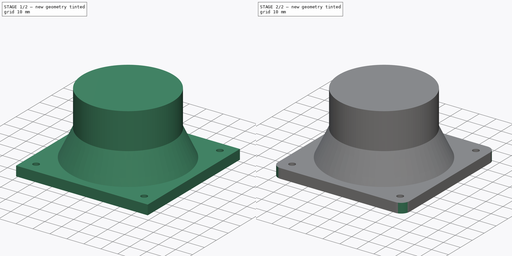
[diagram: build sequence overview — one tinted view per stage of 2, left to right]
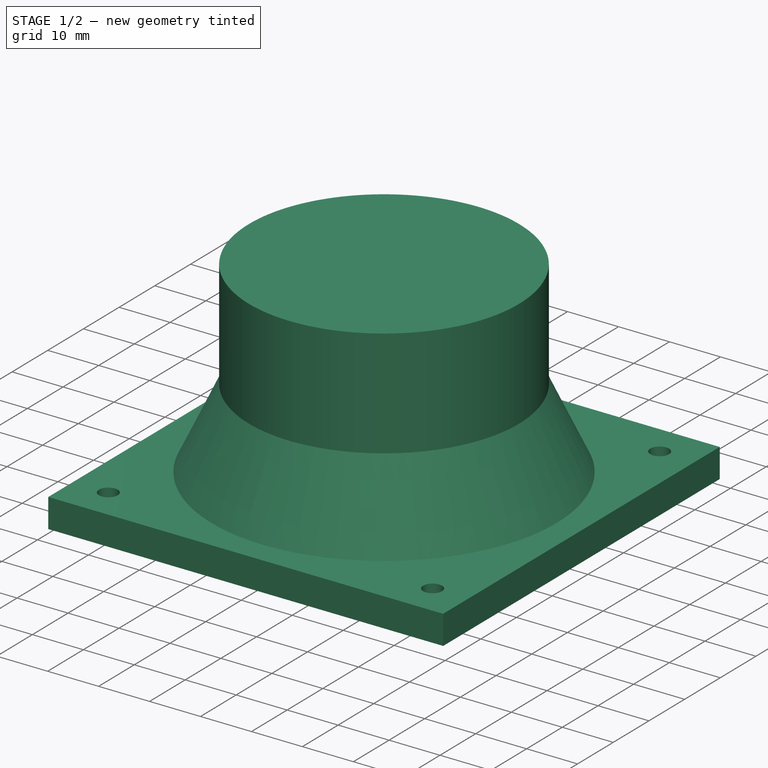
[diagram: stage 1 of 2 — iso view after this stage's code; geometry added in this stage tinted green]
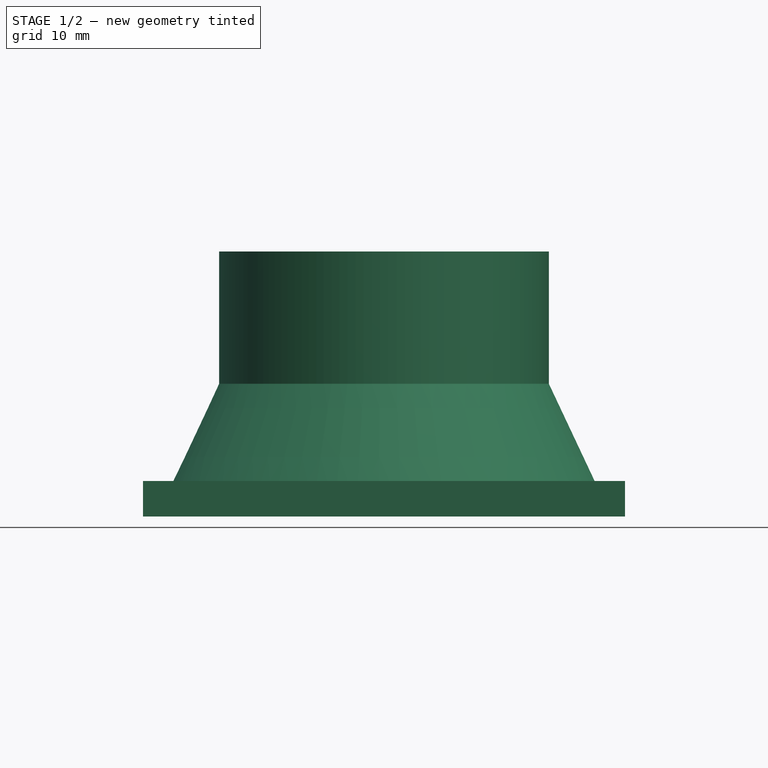
[diagram: stage 1 of 2 — front view after this stage's code; geometry added in this stage tinted green]
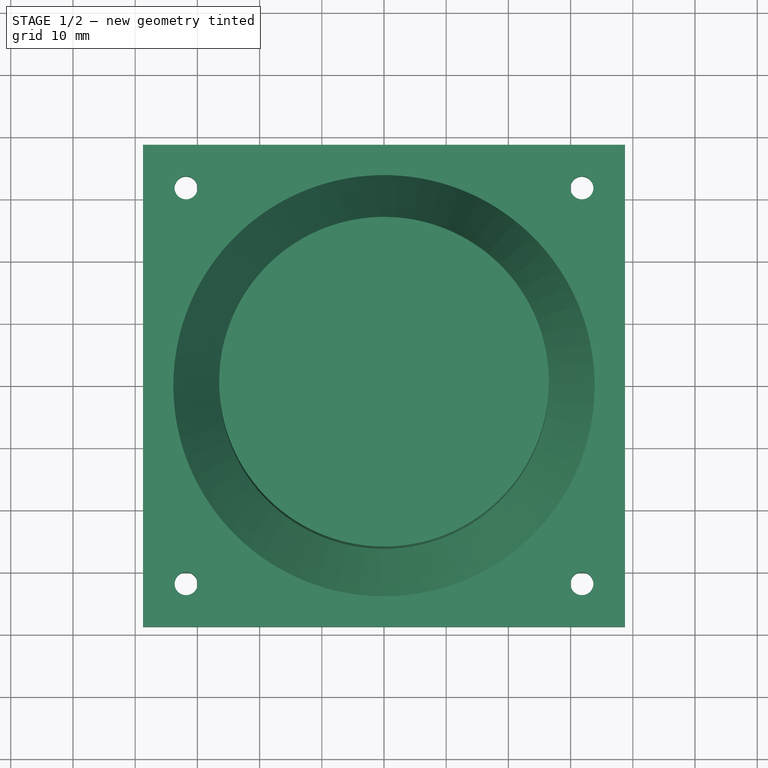
[diagram: stage 1 of 2 — top view after this stage's code; geometry added in this stage tinted green]
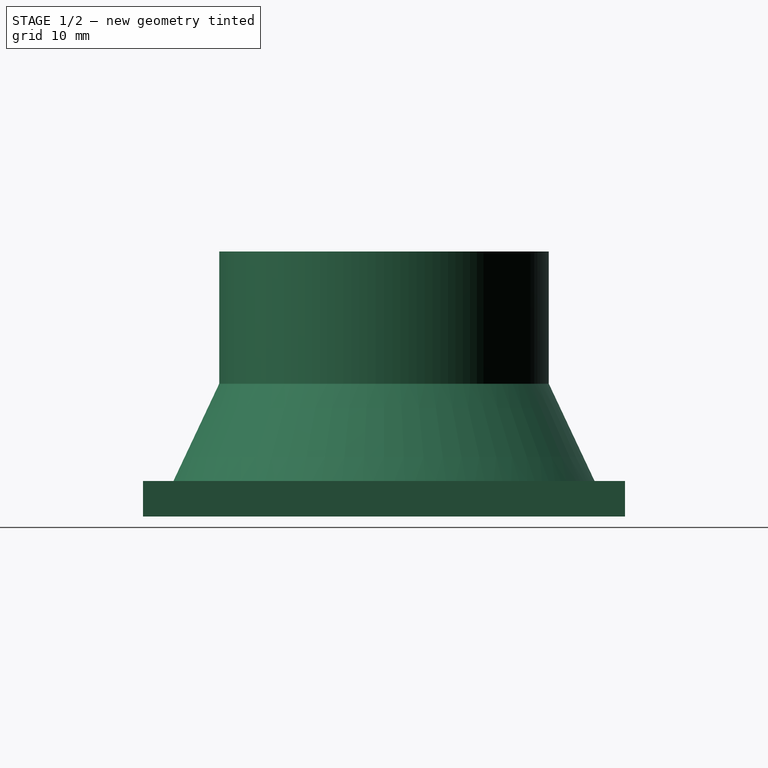
[diagram: stage 1 of 2 — right view after this stage's code; geometry added in this stage tinted green]
FCSTD DOCUMENT  (FreeCAD 0.16R6703 (Git))
Label: sc8n
License: All rights reserved
LicenseURL: http://en.wikipedia.org/wiki/All_rights_reserved
objects: Drawing::FeatureViewPython×6, Drawing::FeatureViewPart×4, Sketcher::SketchObject×3, PartDesign::Revolution×1, PartDesign::Pad×1, PartDesign::Fillet×1, PartDesign::Pocket×1, Drawing::FeaturePage×1
note: 10 computed .brp shape members not serialized (recipe doc carries the construction recipe); baked Part::Feature solids carry a one-line shape summary decoded from their .brp

FEATURE [Sketcher::SketchObject] Sketch001
  Placement = pos=(0,0,0) rot=(1,0,0;1.5708rad)
  expr: Constraints[3] = 53 / 2
  sketch-geometry (11):
    g0: LineSegment StartX=0 StartY=74.5908 StartZ=0 EndX=26.5 EndY=74.5908 EndZ=0
    g1: LineSegment StartX=26.5 StartY=53.3408 StartZ=0 EndX=36.5 EndY=32.0908 EndZ=0
    g2: LineSegment StartX=0 StartY=41.7459 StartZ=0 EndX=0 EndY=74.5908 EndZ=0
    g3: LineSegment StartX=26.5 StartY=53.3408 StartZ=0 EndX=26.5 EndY=74.5908 EndZ=0
    g4: LineSegment StartX=36.5 StartY=32.0908 StartZ=0 EndX=33.5 EndY=32.0908 EndZ=0
    g5: LineSegment StartX=33.5 StartY=32.0908 StartZ=0 EndX=10 EndY=46.7459 EndZ=0
    g6: ArcOfEllipse CenterX=0 CenterY=48.0186 CenterZ=0 NormalX=0 NormalY=0 NormalZ=1 MajorRadius=10.2124 MinorRadius=6.27268 AngleXU=3.14159 StartAngle=1.5708 EndAngle=2.93728
    g7: LineSegment [constr] StartX=-10.2124 StartY=48.0186 StartZ=0 EndX=10.2124 EndY=48.0186 EndZ=0
    g8: LineSegment [constr] StartX=0 StartY=41.7459 StartZ=0 EndX=0 EndY=54.2912 EndZ=0
    g9: GeomPoint [constr] X=-8.05896 Y=48.0186 Z=0
    g10: GeomPoint [constr] X=8.05896 Y=48.0186 Z=0
  constraints (23):
    c: PointOnObject(g0,g-2)
    c: Horizontal(g0)
    c: Vertical(g2)
    c: DistanceX(g0,g0) = 26.5
    c: DistanceX(g2,g1) = 36.5
    c: Coincident(g2,g0)
    c: DistanceY(g1,g0) = 21.25
    c: Coincident(g3,g1)
    c: Coincident(g3,g0)
    c: Vertical(g3)
    c: Coincident(g4,g1)
    c: Coincident(g5,g4)
    c: DistanceY(g1,g0) = 42.5
    c: InternalAlignment(g7-g10 -> g6) x4
    c: PointOnObject(g6,g2)
    c: PointOnObject(g2,g6)
    c: Coincident(g6,g5)
    c: Coincident(g6,g2)
    c: Perpendicular(g2,g7)
    c: Perpendicular(g2,g4)
    c: DistanceY(g2,g5) = 5
    c: DistanceX(g2,g5) = 10
    c: DistanceX(g4,g4) = 3
FEATURE [PartDesign::Revolution] Revolution
  Angle = 360
  Axis = (0,0,1)
  Base = (0,0,0)
  Placement = pos=(0,0,0) rot=(1,0,0;1.5708rad)
  ReferenceAxis = -> Sketch001 [V_Axis]
  Reversed = true
  Sketch = -> Sketch001
FEATURE [Sketcher::SketchObject] Sketch002
  Placement = pos=(0,0,31.9934) rot=(1,0,0;3.14159rad)
  Support = -> Revolution [Face2]
  expr: Constraints[27] = 3.7 / 2
  expr: Constraints[26] = 3.7 / 2
  expr: Constraints[25] = 3.7 / 2
  sketch-geometry (11):
    g0: LineSegment StartX=-38.75 StartY=38.75 StartZ=0 EndX=38.75 EndY=38.75 EndZ=0
    g1: LineSegment StartX=38.75 StartY=38.75 StartZ=0 EndX=38.75 EndY=-38.75 EndZ=0
    g2: LineSegment StartX=38.75 StartY=-38.75 StartZ=0 EndX=-38.75 EndY=-38.75 EndZ=0
    g3: LineSegment StartX=-38.75 StartY=-38.75 StartZ=0 EndX=-38.75 EndY=38.75 EndZ=0
    g4: LineSegment [constr] StartX=-38.75 StartY=38.75 StartZ=0 EndX=38.75 EndY=-38.75 EndZ=0
    g5: LineSegment [constr] StartX=38.75 StartY=38.75 StartZ=0 EndX=-38.75 EndY=-38.75 EndZ=0
    g6: Circle [constr] CenterX=0 CenterY=0 CenterZ=0 NormalX=0 NormalY=0 NormalZ=1 Radius=45
    g7: Circle CenterX=-31.8198 CenterY=31.8198 CenterZ=0 NormalX=0 NormalY=0 NormalZ=1 Radius=1.85
    g8: Circle CenterX=31.8198 CenterY=31.8198 CenterZ=0 NormalX=0 NormalY=0 NormalZ=1 Radius=1.85
    g9: Circle CenterX=-31.8198 CenterY=-31.8198 CenterZ=0 NormalX=0 NormalY=0 NormalZ=1 Radius=1.85
    g10: Circle CenterX=31.8198 CenterY=-31.8198 CenterZ=0 NormalX=0 NormalY=0 NormalZ=1 Radius=1.85
  constraints (30):
    c: Coincident(g0,g1)
    c: Coincident(g1,g2)
    c: Coincident(g2,g3)
    c: Coincident(g3,g0)
    c: Horizontal(g0)
    c: Horizontal(g2)
    c: Vertical(g1)
    c: Vertical(g3)
    c: DistanceX(g0,g0) = 77.5
    c: DistanceY(g1,g1) = 77.5
    c: Coincident(g4,g0)
    c: Coincident(g4,g1)
    c: Coincident(g5,g0)
    c: Coincident(g5,g2)
    c: PointOnObject(g-1,g4)
    c: PointOnObject(g-1,g5)
    c: Coincident(g6,g-1)
    c: Radius(g6) = 45
    c: PointOnObject(g7,g6)
    c: PointOnObject(g8,g6)
    c: PointOnObject(g7,g4)
    c: PointOnObject(g9,g5)
    c: PointOnObject(g8,g5)
    c: PointOnObject(g10,g4)
    c: PointOnObject(g10,g6)
    c: Radius(g10) = 1.85
    c: Radius(g9) = 1.85
    c: Radius(g7) = 1.85
    c: Equal(g7,g8)
    c: PointOnObject(g9,g6)
FEATURE [PartDesign::Pad] Pad
  Length = 5.7
  Length2 = 100
  Placement = pos=(0,0,0) rot=(1,0,0;1.5708rad)
  Reversed = true
  Sketch = -> Sketch002
  Type = 0
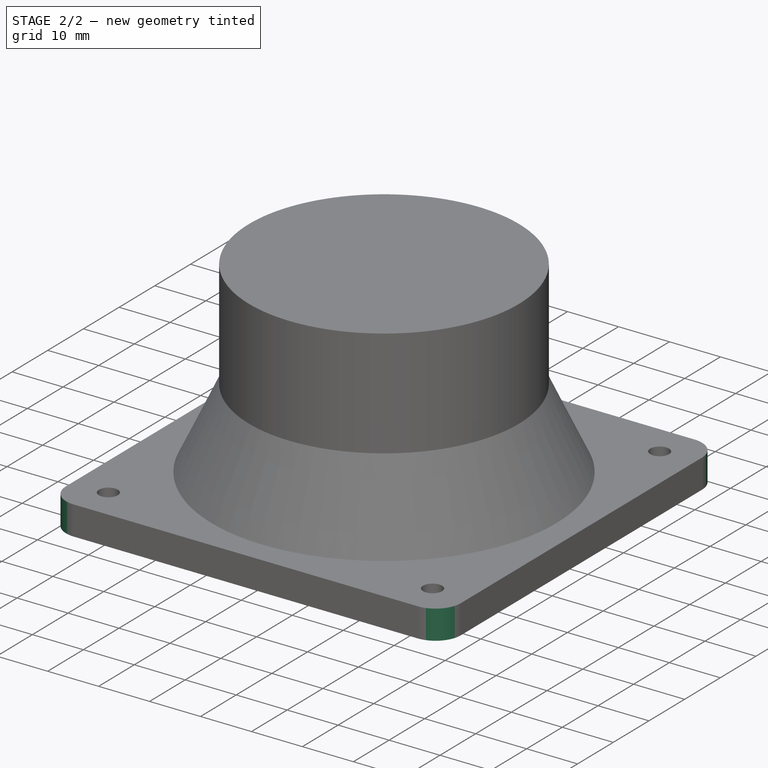
[diagram: stage 2 of 2 — iso view after this stage's code; geometry added in this stage tinted green]
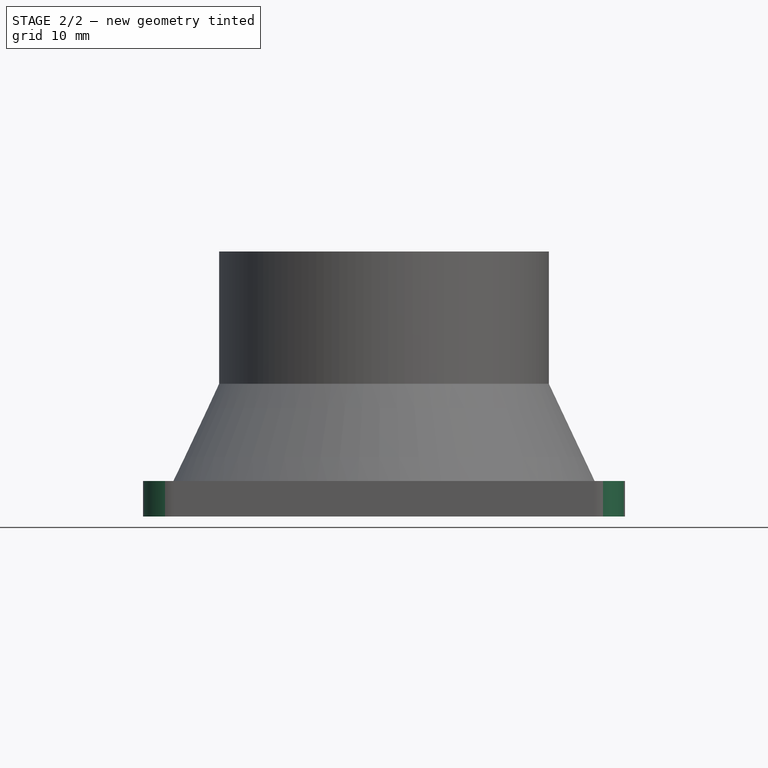
[diagram: stage 2 of 2 — front view after this stage's code; geometry added in this stage tinted green]
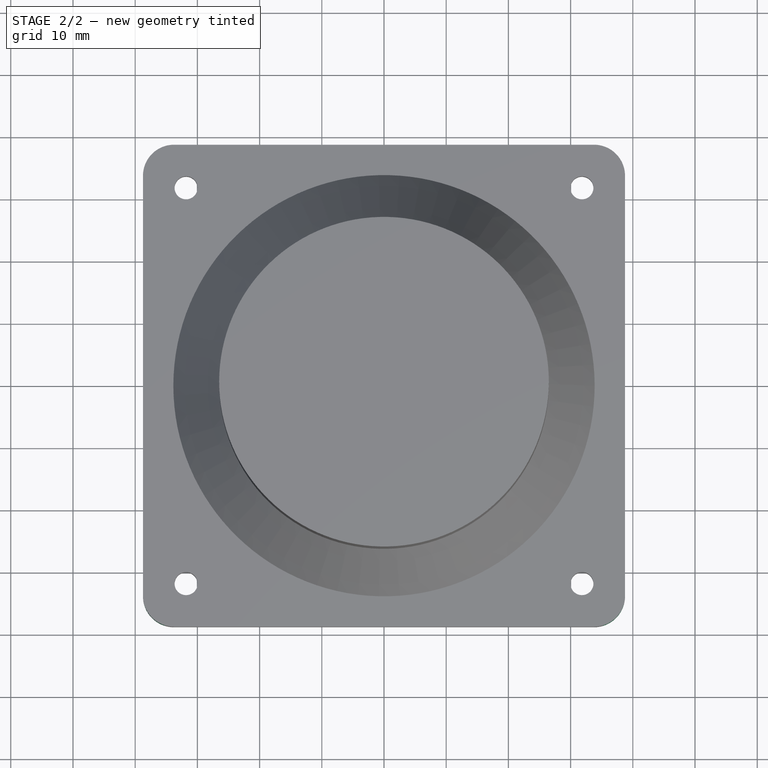
[diagram: stage 2 of 2 — top view after this stage's code; geometry added in this stage tinted green]
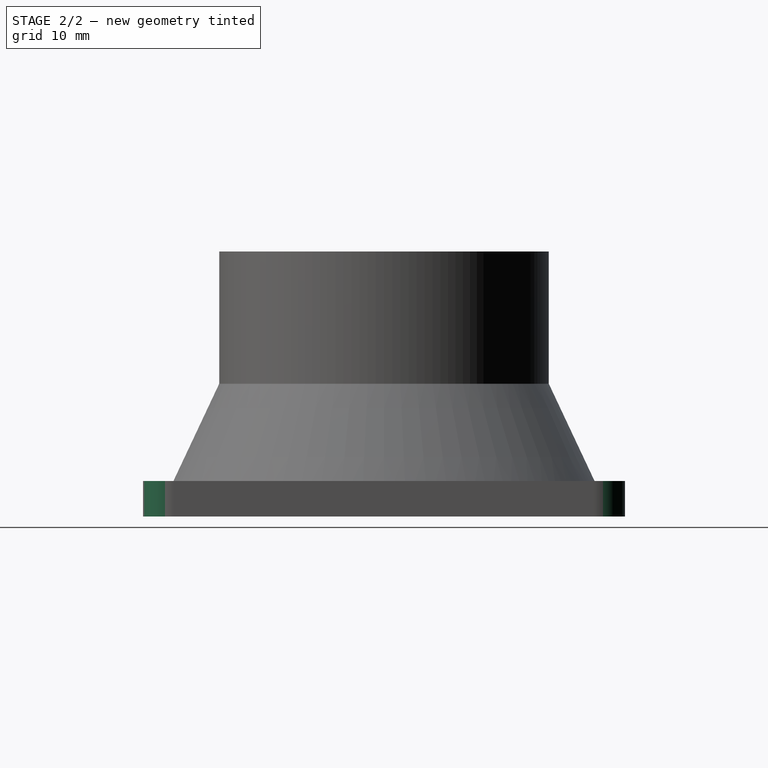
[diagram: stage 2 of 2 — right view after this stage's code; geometry added in this stage tinted green]
FEATURE [PartDesign::Fillet] Fillet
  Base = -> Pad [Edge15,Edge14,Edge17,Edge19]
  Placement = pos=(0,0,0) rot=(1,0,0;1.5708rad)
  Radius = 5
FEATURE [Sketcher::SketchObject] Sketch
  Placement = pos=(0,0,31.9934) rot=(1,0,0;3.14159rad)
  Support = -> Fillet [Face15]
  sketch-geometry (1):
    g0: Circle CenterX=0 CenterY=0 CenterZ=0 NormalX=0 NormalY=0 NormalZ=1 Radius=32.5373
  constraints (1):
    c: Coincident(g0,g-1)
FEATURE [PartDesign::Pocket] Pocket
  Length = 5.7
  Placement = pos=(0,0,0) rot=(1,0,0;1.5708rad)
  Sketch = -> Sketch
  Type = 0
FEATURE [Drawing::FeatureViewPart] Ortho  label="Ortho_0_0"
  Direction = (1,0,0)
  HiddenWidth = 0.15
  LineWidth = 0.35
  Rotation = -90
  ShowHiddenLines = false
  ShowSmoothLines = false
  Source = -> Pocket
  Tolerance = 0.05
  ViewResult = <blob: 3733 chars omitted>
  Visible = true
  X = 130.417
  Y = 116.892
FEATURE [Drawing::FeatureViewPart] Ortho001  label="Ortho_1_0"
  Direction = (0,1,0)
  HiddenWidth = 0.15
  LineWidth = 0.35
  Rotation = -90
  ShowHiddenLines = false
  ShowSmoothLines = false
  Source = -> Pocket
  Tolerance = 0.05
  ViewResult = <blob: 3154 chars omitted>
  Visible = true
  X = 289.583
  Y = 116.892
FEATURE [Drawing::FeatureViewPart] Ortho002  label="Ortho_1_-1"
  Direction = (0.57735,0.57735,-0.57735)
  HiddenWidth = 0.15
  LineWidth = 0.35
  Rotation = 60
  ShowHiddenLines = false
  ShowSmoothLines = false
  Source = -> Pocket
  Tolerance = 0.05
  ViewResult = <blob: 4221 chars omitted>
  Visible = true
  X = 289.583
  Y = 199.462
FEATURE [Drawing::FeatureViewPart] Ortho003  label="Ortho_0_-1"
  Direction = (0,0,-1)
  HiddenWidth = 0.15
  LineWidth = 0.35
  Rotation = 90
  ShowHiddenLines = false
  ShowSmoothLines = false
  Source = -> Pocket
  Tolerance = 0.05
  ViewResult = <g id="Ortho_0_-1"\n   transform="rotate(90,130.417,155.949) translate(130.417,155.949) scale(1,1)"\n  >\n<g   stroke="rgb(0, 0, 0)"\n   stroke-width="0.35"\n   stroke-linecap="butt"\n   stroke-linejoin="miter"\n   fill="none"\n   transform="scale(1,-1)"\n  >\n<path id= "1" d=" M 33.75 -38.75 L -33.75 -38.75 " />\n<path d="M33.75 -38.75 A5 5 0 0 1 38.75 -33.75" /><path d="M-33.75 -38.75 A5 5 0 0 0 -38.75 -33.75" /><path id= "4" d=" M 38.75 33.75 L 38.75 -33.75 " />\n<path id= "5" d=" M -38.75 -33.75 L -38.75 33.75 " />\n<path d="M38.75 33.75 A5 5 0 0 1 33.75 38.75" /><path d="M-38.75 33.75 A5 5 0 0 0 -33.75 38.75" /><path id= "8" d=" M -33.75 38.75 L 33.75 38.75 " />\n<circle cx ="31.8198" cy ="31.8198" r ="1.85" /><circle cx ="31.8198" cy ="-31.8198" r ="1.85" /><circle cx ="-31.8198" cy ="31.8198" r ="1.85" /><circle cx ="-31.8198" cy ="-31.8198" r ="1.85" /><circle cx ="0" cy ="4.3082e-014" r ="32.5373" /><circle cx ="0" cy ="5.02176e-014" r ="24.5161" /><circle cx ="0" cy ="6.2278e-014" r ="10" /></g>\n</g>
  Visible = true
  X = 130.417
  Y = 155.949
FEATURE [Drawing::FeatureViewPython] dim001  # drawing view (typed FeaturePython)
  Rotation = 0
  ViewResult = <g> <line x1="91.667000" y1="120.199000" x2="91.667000" y2="105.301106" style="stroke:rgb(0,0,255);stroke-width:0.50" />\n<line x1="169.167000" y1="120.199000" x2="169.167000" y2="105.301106" style="stroke:rgb(0,0,255);stroke-width:0.50" />\n<line x1="91.667000" y1="106.301106" x2="169.167000" y2="106.301106" style="stroke:rgb(0,0,255);stroke-width:0.50" />\n<polygon points="91.667000,106.301106 94.667000,107.301106 95.667000,106.301106 94.667000,105.301106" style="fill:rgb(0,0,255);stroke:rgb(0,0,255);stroke-width:0" />\n<polygon points="169.167000,106.301106 166.167000,105.301106 165.167000,106.301106 166.167000,107.301106" style="fill:rgb(0,0,255);stroke:rgb(0,0,255);stroke-width:0" />\n<text x="130.417000" y="104.301106" font-family="inherit" font-size="3.6" fill="rgb(0,0,255)" text-anchor="middle" transform="rotate(0.000000 130.417000,104.301106)" >77.5</text> </g> 
  Visible = true
  X = 0
  Y = 0
  arrowL1 = 3
  arrowL2 = 1
  arrowW = 2
  arrow_scheme = 0
  autoPlaceOffset = 2
  autoPlaceText = true
  click1_x = 137.943
  click1_y = 106.301
  click2_x = 137.943
  click2_y = 106.301
  comma_decimal_place = false
  dimension_line_overshoot = 1
  gap_datum_points = 2
  halfDimension_linear = false
  lineColor = rgb(0,0,255)
  strokeWidth = 0.5
  textFormat_linear = %(value)3.3f
  textRenderer_color = rgb(0,0,255)
  textRenderer_family = inherit
  textRenderer_size = 3.6
  unit_custom_scale = 1
  unit_scheme = 0
FEATURE [Drawing::FeatureViewPython] dim002  # drawing view (typed FeaturePython)
  Rotation = 0
  ViewResult = <g> <line x1="94.667000" y1="117.199000" x2="82.547692" y2="117.199000" style="stroke:rgb(0,0,255);stroke-width:0.50" />\n<line x1="94.667000" y1="194.699000" x2="82.547692" y2="194.699000" style="stroke:rgb(0,0,255);stroke-width:0.50" />\n<line x1="83.547692" y1="117.199000" x2="83.547692" y2="194.699000" style="stroke:rgb(0,0,255);stroke-width:0.50" />\n<polygon points="83.547692,117.199000 82.547692,120.199000 83.547692,121.199000 84.547692,120.199000" style="fill:rgb(0,0,255);stroke:rgb(0,0,255);stroke-width:0" />\n<polygon points="83.547692,194.699000 84.547692,191.699000 83.547692,190.699000 82.547692,191.699000" style="fill:rgb(0,0,255);stroke:rgb(0,0,255);stroke-width:0" />\n<text x="81.547692" y="155.949000" font-family="inherit" font-size="3.6" fill="rgb(0,0,255)" text-anchor="middle" transform="rotate(-90.000000 81.547692,155.949000)" >77.5</text> </g> 
  Visible = true
  X = 0
  Y = 0
  arrowL1 = 3
  arrowL2 = 1
  arrowW = 2
  arrow_scheme = 0
  autoPlaceOffset = 2
  autoPlaceText = true
  click1_x = 83.5477
  click1_y = 182.027
  click2_x = 83.5477
  click2_y = 182.027
  comma_decimal_place = false
  dimension_line_overshoot = 1
  gap_datum_points = 2
  halfDimension_linear = false
  lineColor = rgb(0,0,255)
  strokeWidth = 0.5
  textFormat_linear = %(value)3.3f
  textRenderer_color = rgb(0,0,255)
  textRenderer_family = inherit
  textRenderer_size = 3.6
  unit_custom_scale = 1
  unit_scheme = 0
FEATURE [Drawing::FeatureViewPython] dia001  # drawing view (typed FeaturePython)
  Rotation = 0
  ViewResult = <g>  <circle cx ="130.417000" cy ="155.949000" r="0.250000" stroke="none" fill="rgb(0,0,255)" /> \n<line x1="182.027312" y1="154.296589" x2="162.937636" y2="156.990215" style="stroke:rgb(0,0,255);stroke-width:0.50" />\n<polygon points="97.896364,154.907785 100.862827,156.003274 101.894315,155.035787 100.926828,154.004299" style="fill:rgb(0,0,255);stroke:rgb(0,0,255);stroke-width:0" />\n<polygon points="162.937636,156.990215 159.971173,155.894726 158.939685,156.862213 159.907172,157.893701" style="fill:rgb(0,0,255);stroke:rgb(0,0,255);stroke-width:0" />\n<line x1="182.027312" y1="154.296589" x2="181.316268" y2="154.296589" style="stroke:rgb(0,0,255);stroke-width:0.50" />\n<text x="181.671790" y="152.296589" font-family="inherit" font-size="3.6" fill="rgb(0,0,255)" text-anchor="middle" transform="rotate(0.000000 181.671790,152.296589)" >Ø65.075</text> </g>
  Visible = true
  X = 0
  Y = 0
  arrowL1 = 3
  arrowL2 = 1
  arrowW = 2
  arrow_scheme = 0
  autoPlaceOffset = 2
  autoPlaceText = true
  centerPointDia = 0.5
  click1_x = 182.027
  click1_y = 154.297
  click2_x = 181.316
  click2_y = 153.941
  click3_x = 181.316
  click3_y = 153.941
  comma_decimal_place = false
  lineColor = rgb(0,0,255)
  strokeWidth = 0.5
  textFormat_circular = Ø%(value)3.3f
  textRenderer_color = rgb(0,0,255)
  textRenderer_family = inherit
  textRenderer_size = 3.6
  unit_custom_scale = 1
  unit_scheme = 0
FEATURE [Drawing::FeatureViewPython] dia002  # drawing view (typed FeaturePython)
  Rotation = 0
  ViewResult = <g>  <circle cx ="162.236800" cy ="124.129200" r="0.250000" stroke="none" fill="rgb(0,0,255)" /> \n<line x1="177.050003" y1="123.010645" x2="164.081548" y2="124.268498" style="stroke:rgb(0,0,255);stroke-width:0.50" />\n<polygon points="160.392052,123.989902 157.475865,122.766852 156.403407,123.688716 157.325272,124.761174" style="fill:rgb(0,0,255);stroke:rgb(0,0,255);stroke-width:0" />\n<polygon points="164.081548,124.268498 166.997735,125.491548 168.070193,124.569684 167.148328,123.497226" style="fill:rgb(0,0,255);stroke:rgb(0,0,255);stroke-width:0" />\n<line x1="177.050003" y1="123.010645" x2="177.761047" y2="123.010645" style="stroke:rgb(0,0,255);stroke-width:0.50" />\n<text x="177.405525" y="121.010645" font-family="inherit" font-size="3.6" fill="rgb(0,0,255)" text-anchor="middle" transform="rotate(0.000000 177.405525,121.010645)" >Ø3.7</text> </g>
  Visible = true
  X = 0
  Y = 0
  arrowL1 = 3
  arrowL2 = 1
  arrowW = 2
  arrow_scheme = 0
  autoPlaceOffset = 2
  autoPlaceText = true
  centerPointDia = 0.5
  click1_x = 177.05
  click1_y = 123.011
  click2_x = 177.761
  click2_y = 124.433
  click3_x = 177.761
  click3_y = 124.433
  comma_decimal_place = false
  lineColor = rgb(0,0,255)
  strokeWidth = 0.5
  textFormat_circular = Ø%(value)3.3f
  textRenderer_color = rgb(0,0,255)
  textRenderer_family = inherit
  textRenderer_size = 3.6
  unit_custom_scale = 1
  unit_scheme = 0
FEATURE [Drawing::FeatureViewPython] centerLines001  # drawing view (typed FeaturePython)
  Rotation = 0
  ViewResult = <blob: 3079 chars omitted>
  Visible = true
  X = 0
  Y = 0
  centerLine_color = rgb(0,0,255)
  centerLine_len_dash = 6
  centerLine_len_dot = 3
  centerLine_len_gap = 2
  centerLine_width = 0.32
  click1_x = 44.0084
  click1_y = 56.0815
  click2_x = 257.04
  click2_y = 233.284
FEATURE [Drawing::FeatureViewPython] centerLines002  # drawing view (typed FeaturePython)
  Rotation = 0
  ViewResult = <blob: 3230 chars omitted>
  Visible = true
  X = 0
  Y = 0
  centerLine_color = rgb(0,0,255)
  centerLine_len_dash = 6
  centerLine_len_dot = 3
  centerLine_len_gap = 2
  centerLine_width = 0.32
  click1_x = 234.452
  click1_y = 35.0509
  click2_x = 47.903
  click2_y = 251.977
FEATURE [Drawing::FeaturePage] Page
  EditableTexts = AUTHOR NAME | CREATION DATE | SUPERVISOR NAME | CHECK DATE | SCALE | WEIGHT | NUMBER | SHEET | TITLE | SUBTITLE
  Group = -> [Ortho,Ortho001,Ortho002,Ortho003,dim001,dim002,dia001,dia002,centerLines001,centerLines002]
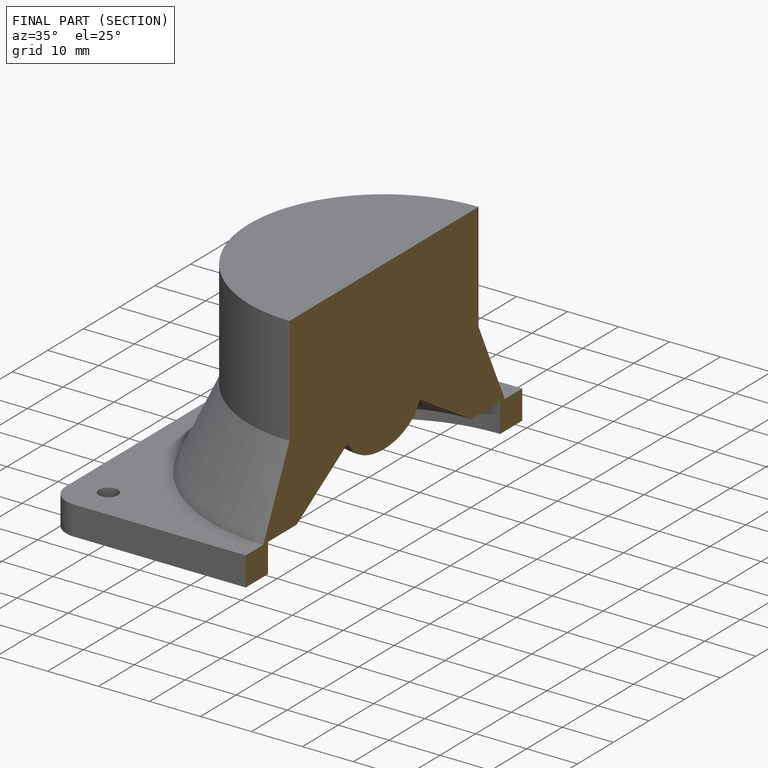
[diagram: finished part — half-section view (interior)]
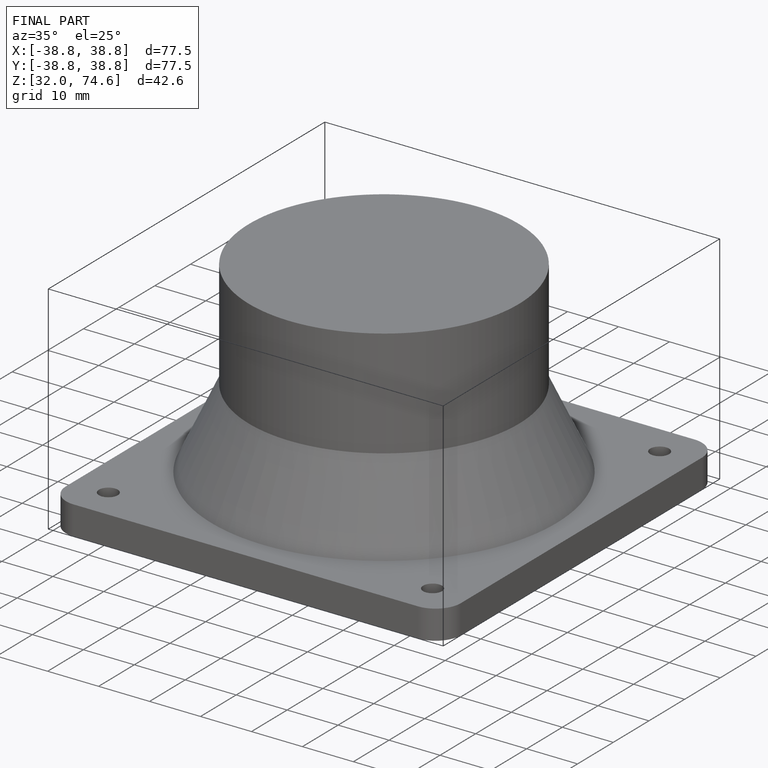
[diagram: finished part — iso view with bounding-box wireframe]
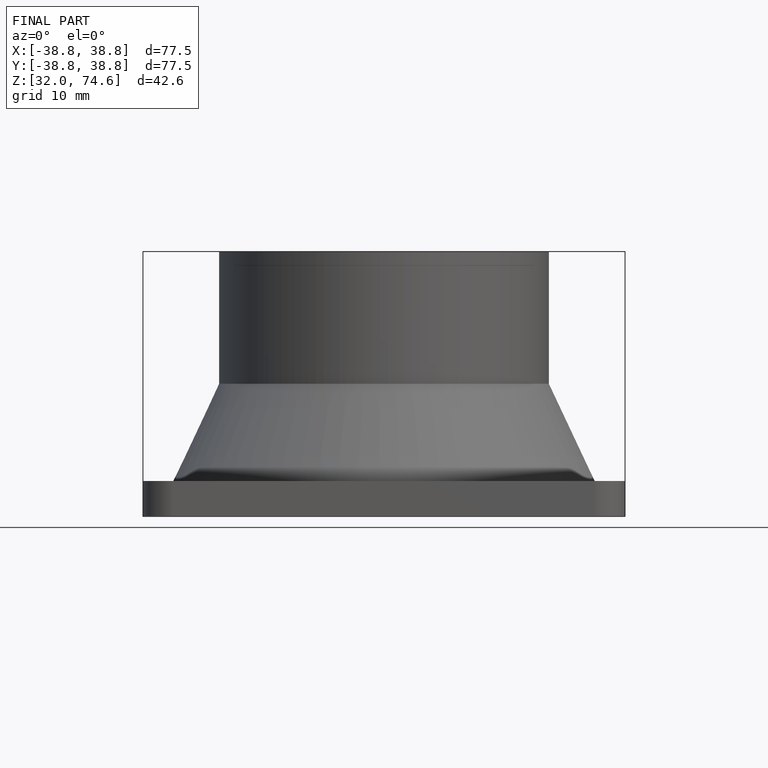
[diagram: finished part — front view with bounding-box wireframe]
